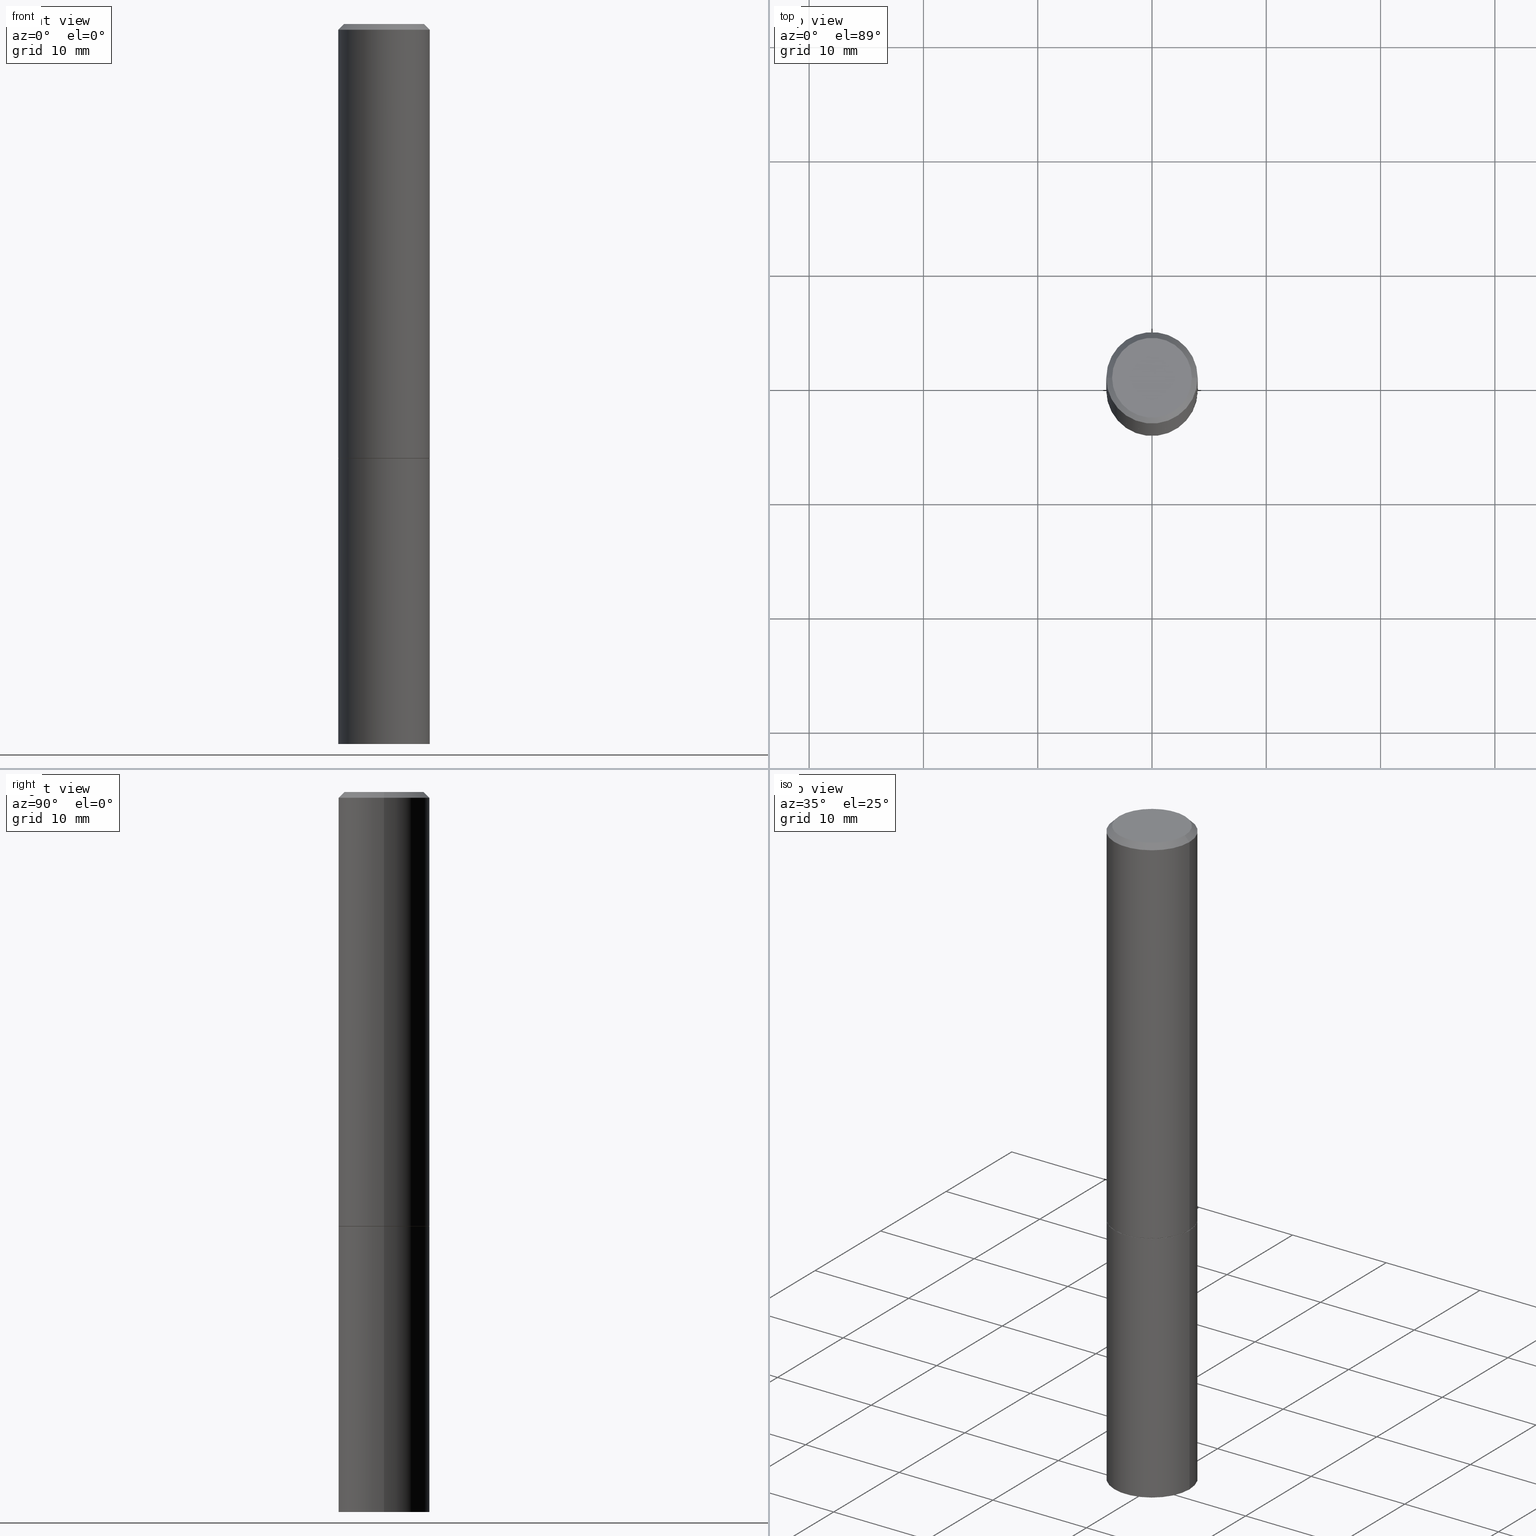
[diagram: canonical four-view strip — front | top / right | iso, engineering-drawing reading convention]
A machine part, canonical four-view strip (front | top / right | iso — engineering-drawing reading convention). The complete STEP part file that produces these views, byte-faithful:
ISO-10303-21;
HEADER;
FILE_DESCRIPTION (( 'STEP AP203' ),
    '1' );
FILE_NAME ('83058.STEP',
    '2024-02-29T22:35:19',
    ( '' ),
    ( '' ),
    'SwSTEP 2.0',
    'SolidWorks 2023',
    '' );
FILE_SCHEMA (( 'CONFIG_CONTROL_DESIGN' ));
ENDSEC;

DATA;
#1 = AXIS2_PLACEMENT_3D ( 'NONE', #163, #281, #157 ) ;
#2 = CARTESIAN_POINT ( 'NONE',  ( 6.065496279980994755E-29, -8.659921164732655335E-15, -2.480300000000000171 ) ) ;
#3 = EDGE_CURVE ( 'NONE', #110, #333, #67, .T. ) ;
#4 = CARTESIAN_POINT ( 'NONE',  ( 0.1565000000000000002, -6.316089741967248403E-15, -1.496000000000000663 ) ) ;
#5 = AXIS2_PLACEMENT_3D ( 'NONE', #21, #237, #353 ) ;
#6 = APPROVAL_PERSON_ORGANIZATION ( #346, #112, #55 ) ;
#7 = COORDINATED_UNIVERSAL_TIME_OFFSET ( 5, 0, .BEHIND. ) ;
#8 = DATE_AND_TIME ( #124, #297 ) ;
#9 = CARTESIAN_POINT ( 'NONE',  ( 0.1374999999999997891, -1.046838268059730914E-15, 8.537024980207840646E-18 ) ) ;
#10 = ORIENTED_EDGE ( 'NONE', *, *, #75, .F. ) ;
#11 = DIRECTION ( 'NONE',  ( -1.000000000000000000, 6.982962677686265922E-15, -4.876176775795935793E-29 ) ) ;
#12 = PERSON ( 'UNSPECIFIED', 'UNSPECIFIED', 'UNSPECIFIED', ('UNSPECIFIED'), ('UNSPECIFIED'), ('UNSPECIFIED') ) ;
#13 = PLANE ( 'NONE',  #25 ) ;
#14 = ORIENTED_EDGE ( 'NONE', *, *, #17, .T. ) ;
#15 = AXIS2_PLACEMENT_3D ( 'NONE', #206, #301, #121 ) ;
#16 = LOCAL_TIME ( 17, 35, 19.00000000000000000, #111 ) ;
#17 = EDGE_CURVE ( 'NONE', #248, #358, #155, .T. ) ;
#18 = CARTESIAN_POINT ( 'NONE',  ( 4.890937612370281041E-31, -6.982962677686302702E-17, -0.02000000000000003511 ) ) ;
#19 = ADVANCED_FACE ( 'NONE', ( #193 ), #164, .T. ) ;
#20 = APPROVAL_STATUS ( 'not_yet_approved' ) ;
#21 = CARTESIAN_POINT ( 'NONE',  ( 3.655975865246779683E-29, -5.219764601570503930E-15, -1.495000000000000329 ) ) ;
#22 = SECURITY_CLASSIFICATION_LEVEL ( 'unclassified' ) ;
#23 = DIRECTION ( 'NONE',  ( -2.445468806185136597E-29, 3.491481338843145583E-15, 1.000000000000000000 ) ) ;
#24 = EDGE_LOOP ( 'NONE', ( #312, #113, #83, #331 ) ) ;
#25 = AXIS2_PLACEMENT_3D ( 'NONE', #225, #199, #46 ) ;
#26 = ORIENTED_EDGE ( 'NONE', *, *, #283, .T. ) ;
#27 = CALENDAR_DATE ( 2024, 29, 2 ) ;
#28 = CC_DESIGN_PERSON_AND_ORGANIZATION_ASSIGNMENT ( #49, #153, ( #221 ) ) ;
#29 = LINE ( 'NONE', #136, #93 ) ;
#30 = VERTEX_POINT ( 'NONE', #195 ) ;
#31 = ORIENTED_EDGE ( 'NONE', *, *, #222, .F. ) ;
#32 = AXIS2_PLACEMENT_3D ( 'NONE', #143, #227, #339 ) ;
#33 = EDGE_CURVE ( 'NONE', #357, #333, #311, .T. ) ;
#34 = EDGE_LOOP ( 'NONE', ( #138, #217, #275, #120 ) ) ;
#35 = ORIENTED_EDGE ( 'NONE', *, *, #332, .F. ) ;
#36 = DIRECTION ( 'NONE',  ( 1.000000000000000000, -6.982962677686261977E-15, 0.000000000000000000 ) ) ;
#37 = CIRCLE ( 'NONE', #260, 0.1574999999999997791 ) ;
#38 = LINE ( 'NONE', #4, #329 ) ;
#39 = DIRECTION ( 'NONE',  ( 0.000000000000000000, 0.000000000000000000, 1.000000000000000000 ) ) ;
#40 = CALENDAR_DATE ( 2024, 29, 2 ) ;
#41 = PERSON_AND_ORGANIZATION ( #12, #356 ) ;
#42 = CARTESIAN_POINT ( 'NONE',  ( 0.000000000000000000, 0.000000000000000000, 0.000000000000000000 ) ) ;
#43 = DIRECTION ( 'NONE',  ( 2.445468806185136597E-29, -3.491481338843145583E-15, -1.000000000000000000 ) ) ;
#44 = ORIENTED_EDGE ( 'NONE', *, *, #319, .T. ) ;
#45 = CARTESIAN_POINT ( 'NONE',  ( -0.1575000000000000011, -1.525692305351524236E-15, -1.495000000000000329 ) ) ;
#46 = DIRECTION ( 'NONE',  ( -1.000000000000000000, 6.982962677686265922E-15, -4.876176775795935793E-29 ) ) ;
#47 = ORIENTED_EDGE ( 'NONE', *, *, #89, .T. ) ;
#48 = EDGE_CURVE ( 'NONE', #245, #189, #307, .T. ) ;
#49 = PERSON_AND_ORGANIZATION ( #12, #356 ) ;
#50 = DIRECTION ( 'NONE',  ( -1.000000000000000000, 6.982962677686266711E-15, 0.000000000000000000 ) ) ;
#51 = CIRCLE ( 'NONE', #249, 0.1575000000000000011 ) ;
#52 = AXIS2_PLACEMENT_3D ( 'NONE', #291, #103, #123 ) ;
#53 = CC_DESIGN_PERSON_AND_ORGANIZATION_ASSIGNMENT ( #178, #294, ( #104 ) ) ;
#54 = APPLICATION_CONTEXT ( 'configuration controlled 3d designs of mechanical parts and assemblies' ) ;
#55 = APPROVAL_ROLE ( '' ) ;
#56 = DIMENSIONAL_EXPONENTS ( 1.000000000000000000, 0.000000000000000000, 0.000000000000000000, 0.000000000000000000, 0.000000000000000000, 0.000000000000000000, 0.000000000000000000 ) ;
#57 = ORIENTED_EDGE ( 'NONE', *, *, #3, .T. ) ;
#58 = CIRCLE ( 'NONE', #5, 0.1575000000000000011 ) ;
#59 = FACE_OUTER_BOUND ( 'NONE', #250, .T. ) ;
#60 = ORIENTED_EDGE ( 'NONE', *, *, #156, .F. ) ;
#61 = CARTESIAN_POINT ( 'NONE',  ( 0.1575000000000000011, -1.099816621735586889E-15, 7.679978421878598033E-30 ) ) ;
#62 = DIRECTION ( 'NONE',  ( -2.445468806185136597E-29, 3.491481338843145583E-15, 1.000000000000000000 ) ) ;
#63 = CIRCLE ( 'NONE', #313, 0.1574999999999997791 ) ;
#64 = DIRECTION ( 'NONE',  ( -2.445468806185136597E-29, 3.491481338843145583E-15, 1.000000000000000000 ) ) ;
#65 = DIRECTION ( 'NONE',  ( 1.000000000000000000, -6.982962677686267499E-15, 0.000000000000000000 ) ) ;
#66 = DIRECTION ( 'NONE',  ( -0.7071067811865466846, 2.468850131082247989E-15, -0.7071067811865483499 ) ) ;
#67 = CIRCLE ( 'NONE', #334, 0.1575000000000000011 ) ;
#68 = CC_DESIGN_APPROVAL ( #81, ( #221 ) ) ;
#69 = PERSON_AND_ORGANIZATION_ROLE ( 'design_owner' ) ;
#70 = APPROVAL_DATE_TIME ( #324, #172 ) ;
#71 = EDGE_CURVE ( 'NONE', #364, #110, #170, .T. ) ;
#72 = CARTESIAN_POINT ( 'NONE',  ( 0.1575000000000000011, -9.759737786468242027E-15, -2.480300000000000171 ) ) ;
#73 = CARTESIAN_POINT ( 'NONE',  ( 3.658421334052965846E-29, -5.223256082909347726E-15, -1.496000000000000663 ) ) ;
#74 = DIRECTION ( 'NONE',  ( 1.000000000000000000, -6.982962677686266711E-15, 0.000000000000000000 ) ) ;
#75 = EDGE_CURVE ( 'NONE', #30, #167, #98, .T. ) ;
#76 = DIRECTION ( 'NONE',  ( -2.445468806185136877E-29, 3.491481338843145188E-15, 1.000000000000000000 ) ) ;
#77 = DIRECTION ( 'NONE',  ( 2.438088387897960049E-29, -3.491481338843145188E-15, -1.000000000000000000 ) ) ;
#78 = EDGE_LOOP ( 'NONE', ( #242, #57 ) ) ;
#79 = SHAPE_DEFINITION_REPRESENTATION ( #258, #145 ) ;
#80 = VECTOR ( 'NONE', #190, 39.37007874015748143 ) ;
#81 = APPROVAL ( #238, 'UNSPECIFIED' ) ;
#82 = DIRECTION ( 'NONE',  ( 1.000000000000000000, -6.982962677686267499E-15, 4.876173381029107889E-29 ) ) ;
#83 = ORIENTED_EDGE ( 'NONE', *, *, #33, .T. ) ;
#84 = CARTESIAN_POINT ( 'NONE',  ( 0.1574999999999997791, -1.150358061425877894E-15, -0.02000000000000003511 ) ) ;
#85 = EDGE_LOOP ( 'NONE', ( #219, #236, #268, #366 ) ) ;
#86 = CONICAL_SURFACE ( 'NONE', #15, 0.1574999999999997791, 0.7853981633974471688 ) ;
#87 = CC_DESIGN_APPROVAL ( #172, ( #104 ) ) ;
#88 = ORIENTED_EDGE ( 'NONE', *, *, #156, .T. ) ;
#89 = EDGE_CURVE ( 'NONE', #336, #150, #37, .T. ) ;
#90 = CARTESIAN_POINT ( 'NONE',  ( 3.655975865246779683E-29, -5.219764601570503930E-15, -1.495000000000000329 ) ) ;
#91 = CC_DESIGN_DATE_AND_TIME_ASSIGNMENT ( #8, #232, ( #104 ) ) ;
#92 = CARTESIAN_POINT ( 'NONE',  ( 3.658421334052965846E-29, -5.223256082909347726E-15, -1.496000000000000663 ) ) ;
#93 = VECTOR ( 'NONE', #359, 39.37007874015748143 ) ;
#94 = DIRECTION ( 'NONE',  ( -2.445468806185136597E-29, 3.491481338843145583E-15, 1.000000000000000000 ) ) ;
#95 = CARTESIAN_POINT ( 'NONE',  ( 3.658421334052965286E-29, -5.223256082909346937E-15, -1.496000000000000441 ) ) ;
#96 = CARTESIAN_POINT ( 'NONE',  ( 3.658421334052965846E-29, -5.223256082909347726E-15, -1.496000000000000663 ) ) ;
#97 = MANIFOLD_SOLID_BREP ( 'Body-Move/Copy2[2]', #325 ) ;
#98 = CIRCLE ( 'NONE', #175, 0.1374999999999997891 ) ;
#99 = CC_DESIGN_APPROVAL ( #112, ( #271 ) ) ;
#100 = ADVANCED_FACE ( 'NONE', ( #327 ), #303, .T. ) ;
#101 = COORDINATED_UNIVERSAL_TIME_OFFSET ( 5, 0, .BEHIND. ) ;
#102 = PRODUCT ( '83058', '83058', '', ( #257 ) ) ;
#103 = DIRECTION ( 'NONE',  ( -2.445468806185136597E-29, 3.491481338843145583E-15, 1.000000000000000000 ) ) ;
#104 = PRODUCT_DEFINITION ( 'UNKNOWN', '', #271, #169 ) ;
#105 = CARTESIAN_POINT ( 'NONE',  ( -0.1575000000000000011, -5.822483814998842744E-15, -2.480300000000000171 ) ) ;
#106 = DIRECTION ( 'NONE',  ( -2.445468806185136597E-29, 3.491481338843145583E-15, 1.000000000000000000 ) ) ;
#107 = EDGE_CURVE ( 'NONE', #189, #358, #146, .T. ) ;
#108 = AXIS2_PLACEMENT_3D ( 'NONE', #90, #64, #224 ) ;
#109 = CYLINDRICAL_SURFACE ( 'NONE', #117, 0.1575000000000000011 ) ;
#110 = VERTEX_POINT ( 'NONE', #255 ) ;
#111 = COORDINATED_UNIVERSAL_TIME_OFFSET ( 5, 0, .BEHIND. ) ;
#112 = APPROVAL ( #20, 'UNSPECIFIED' ) ;
#113 = ORIENTED_EDGE ( 'NONE', *, *, #222, .T. ) ;
#114 = CARTESIAN_POINT ( 'NONE',  ( 3.658421334052965846E-29, -5.223256082909347726E-15, -1.496000000000000663 ) ) ;
#115 = ADVANCED_FACE ( 'NONE', ( #300 ), #296, .T. ) ;
#116 = ORIENTED_EDGE ( 'NONE', *, *, #321, .F. ) ;
#117 = AXIS2_PLACEMENT_3D ( 'NONE', #210, #106, #186 ) ;
#118 = ORIENTED_EDGE ( 'NONE', *, *, #202, .F. ) ;
#119 = DIRECTION ( 'NONE',  ( 1.000000000000000000, -6.982962677686268288E-15, 0.000000000000000000 ) ) ;
#120 = ORIENTED_EDGE ( 'NONE', *, *, #33, .F. ) ;
#121 = DIRECTION ( 'NONE',  ( -1.000000000000000000, 6.982962677686266711E-15, 0.000000000000000000 ) ) ;
#122 = CARTESIAN_POINT ( 'NONE',  ( 4.890937612370281041E-31, -6.982962677686302702E-17, -0.02000000000000003511 ) ) ;
#123 = DIRECTION ( 'NONE',  ( 1.000000000000000000, -6.982962677686261977E-15, 0.000000000000000000 ) ) ;
#124 = CALENDAR_DATE ( 2024, 29, 2 ) ;
#125 = CARTESIAN_POINT ( 'NONE',  ( 9.601573681818600950E-16, 0.1374999999999997891, -4.758101716008313957E-16 ) ) ;
#126 = CARTESIAN_POINT ( 'NONE',  ( 1.099816621735623373E-15, 0.1574999999999947553, -1.496000000000000885 ) ) ;
#127 = ORIENTED_EDGE ( 'NONE', *, *, #319, .F. ) ;
#128 =( NAMED_UNIT ( * ) SI_UNIT ( $, .STERADIAN. ) SOLID_ANGLE_UNIT ( ) );
#129 = DIRECTION ( 'NONE',  ( -2.445468806185136597E-29, 3.491481338843145583E-15, 1.000000000000000000 ) ) ;
#130 = ORIENTED_EDGE ( 'NONE', *, *, #321, .T. ) ;
#131 = PERSON_AND_ORGANIZATION_ROLE ( 'design_supplier' ) ;
#132 = DATE_AND_TIME ( #330, #16 ) ;
#133 = EDGE_LOOP ( 'NONE', ( #305, #31 ) ) ;
#134 = CONICAL_SURFACE ( 'NONE', #229, 0.1565000000000000002, 0.7853981633972775267 ) ;
#135 = ORIENTED_EDGE ( 'NONE', *, *, #283, .F. ) ;
#136 = CARTESIAN_POINT ( 'NONE',  ( -0.1574999999999998901, 1.119104808822157012E-15, -7.747322767151471379E-30 ) ) ;
#137 = ADVANCED_FACE ( 'NONE', ( #269 ), #13, .T. ) ;
#138 = ORIENTED_EDGE ( 'NONE', *, *, #340, .T. ) ;
#139 = CC_DESIGN_PERSON_AND_ORGANIZATION_ASSIGNMENT ( #204, #69, ( #102 ) ) ;
#140 = ORIENTED_EDGE ( 'NONE', *, *, #75, .T. ) ;
#141 = ORIENTED_EDGE ( 'NONE', *, *, #276, .F. ) ;
#142 = DIRECTION ( 'NONE',  ( -2.445468806185136877E-29, 3.491481338843145188E-15, 1.000000000000000000 ) ) ;
#143 = CARTESIAN_POINT ( 'NONE',  ( 0.000000000000000000, 0.000000000000000000, 0.000000000000000000 ) ) ;
#144 = CLOSED_SHELL ( 'NONE', ( #174, #137, #147, #231 ) ) ;
#145 = ADVANCED_BREP_SHAPE_REPRESENTATION ( '83058', ( #200, #97, #308 ), #226 ) ;
#146 = LINE ( 'NONE', #183, #220 ) ;
#147 = ADVANCED_FACE ( 'NONE', ( #338 ), #152, .F. ) ;
#148 = APPLICATION_PROTOCOL_DEFINITION ( 'international standard', 'config_control_design', 1994, #54 ) ;
#149 = CARTESIAN_POINT ( 'NONE',  ( 4.890937612370281041E-31, -6.982962677686302702E-17, -0.02000000000000003511 ) ) ;
#150 = VERTEX_POINT ( 'NONE', #235 ) ;
#151 = CC_DESIGN_PERSON_AND_ORGANIZATION_ASSIGNMENT ( #218, #354, ( #271 ) ) ;
#152 = PLANE ( 'NONE',  #348 ) ;
#153 = PERSON_AND_ORGANIZATION_ROLE ( 'classification_officer' ) ;
#154 = DIRECTION ( 'NONE',  ( -0.7071067811864267805, 7.493145998869918709E-15, 0.7071067811866682540 ) ) ;
#155 = CIRCLE ( 'NONE', #108, 0.1575000000000000011 ) ;
#156 = EDGE_CURVE ( 'NONE', #150, #336, #63, .T. ) ;
#157 = DIRECTION ( 'NONE',  ( 1.000000000000000000, -6.982962677686265922E-15, 4.876176775795935793E-29 ) ) ;
#158 = CALENDAR_DATE ( 2024, 29, 2 ) ;
#159 = PERSON_AND_ORGANIZATION ( #12, #356 ) ;
#160 = ORIENTED_EDGE ( 'NONE', *, *, #310, .T. ) ;
#161 = CIRCLE ( 'NONE', #188, 0.1374999999999997891 ) ;
#162 = DATE_TIME_ROLE ( 'classification_date' ) ;
#163 = CARTESIAN_POINT ( 'NONE',  ( 3.658421334052965846E-29, -5.223256082909347726E-15, -1.496000000000000663 ) ) ;
#164 = CYLINDRICAL_SURFACE ( 'NONE', #361, 0.1574999999999998901 ) ;
#165 = DIRECTION ( 'NONE',  ( -2.445468806185136597E-29, 3.491481338843145583E-15, 1.000000000000000000 ) ) ;
#166 = EDGE_LOOP ( 'NONE', ( #360, #44, #191, #116 ) ) ;
#167 = VERTEX_POINT ( 'NONE', #9 ) ;
#168 = AXIS2_PLACEMENT_3D ( 'NONE', #114, #165, #272 ) ;
#169 = DESIGN_CONTEXT ( 'detailed design', #54, 'design' ) ;
#170 = LINE ( 'NONE', #288, #194 ) ;
#171 = CARTESIAN_POINT ( 'NONE',  ( -0.1565000000000000002, -4.105958247096567940E-15, -1.496000000000000663 ) ) ;
#172 = APPROVAL ( #177, 'UNSPECIFIED' ) ;
#173 = DIRECTION ( 'NONE',  ( 1.000000000000000000, -6.982962677686267499E-15, 4.876173381029107889E-29 ) ) ;
#174 = ADVANCED_FACE ( 'NONE', ( #316 ), #109, .T. ) ;
#175 = AXIS2_PLACEMENT_3D ( 'NONE', #252, #234, #173 ) ;
#176 = APPROVAL_PERSON_ORGANIZATION ( #41, #172, #259 ) ;
#177 = APPROVAL_STATUS ( 'not_yet_approved' ) ;
#178 = PERSON_AND_ORGANIZATION ( #12, #356 ) ;
#179 = PLANE ( 'NONE',  #241 ) ;
#180 = DIRECTION ( 'NONE',  ( -2.445468806185136597E-29, 3.491481338843145583E-15, 1.000000000000000000 ) ) ;
#181 = CC_DESIGN_PERSON_AND_ORGANIZATION_ASSIGNMENT ( #352, #131, ( #271 ) ) ;
#182 = APPLICATION_PROTOCOL_DEFINITION ( 'international standard', 'config_control_design', 1994, #209 ) ;
#183 = CARTESIAN_POINT ( 'NONE',  ( -0.1565000000000000002, -4.111256701444791131E-15, -1.496000000000000663 ) ) ;
#184 = CC_DESIGN_DATE_AND_TIME_ASSIGNMENT ( #132, #162, ( #221 ) ) ;
#185 = ORIENTED_EDGE ( 'NONE', *, *, #48, .F. ) ;
#186 = DIRECTION ( 'NONE',  ( 1.000000000000000000, -6.982962677686265922E-15, 4.876176775795935232E-29 ) ) ;
#187 = COORDINATED_UNIVERSAL_TIME_OFFSET ( 5, 0, .BEHIND. ) ;
#188 = AXIS2_PLACEMENT_3D ( 'NONE', #216, #23, #82 ) ;
#189 = VERTEX_POINT ( 'NONE', #171 ) ;
#190 = DIRECTION ( 'NONE',  ( 0.7071067811865466846, -7.319954787623252890E-15, -0.7071067811865483499 ) ) ;
#191 = ORIENTED_EDGE ( 'NONE', *, *, #211, .T. ) ;
#192 = CYLINDRICAL_SURFACE ( 'NONE', #207, 0.1574999999999998901 ) ;
#193 = FACE_OUTER_BOUND ( 'NONE', #351, .T. ) ;
#194 = VECTOR ( 'NONE', #142, 39.37007874015748143 ) ;
#195 = CARTESIAN_POINT ( 'NONE',  ( -0.1374999999999997891, 9.950721815702913496E-16, 8.537024980193986277E-18 ) ) ;
#196 = CARTESIAN_POINT ( 'NONE',  ( 0.000000000000000000, 0.000000000000000000, 0.000000000000000000 ) ) ;
#197 = DIRECTION ( 'NONE',  ( -2.445468806185136877E-29, 3.491481338843145188E-15, 1.000000000000000000 ) ) ;
#198 = VECTOR ( 'NONE', #76, 39.37007874015748143 ) ;
#199 = DIRECTION ( 'NONE',  ( 2.438088387897960049E-29, -3.491481338843145188E-15, -1.000000000000000000 ) ) ;
#200 = MANIFOLD_SOLID_BREP ( 'Body-Move/Copy2[1]', #144 ) ;
#201 = DIRECTION ( 'NONE',  ( 1.000000000000000000, -6.982962677686268288E-15, 0.000000000000000000 ) ) ;
#202 = EDGE_CURVE ( 'NONE', #30, #336, #253, .T. ) ;
#203 = DIRECTION ( 'NONE',  ( -2.445468806185136597E-29, 3.491481338843145583E-15, 1.000000000000000000 ) ) ;
#204 = PERSON_AND_ORGANIZATION ( #12, #356 ) ;
#205 = ADVANCED_FACE ( 'NONE', ( #263 ), #86, .T. ) ;
#206 = CARTESIAN_POINT ( 'NONE',  ( 4.890937612370281041E-31, -6.982962677686302702E-17, -0.02000000000000003511 ) ) ;
#207 = AXIS2_PLACEMENT_3D ( 'NONE', #306, #244, #212 ) ;
#208 = EDGE_LOOP ( 'NONE', ( #141, #26, #88, #118 ) ) ;
#209 = APPLICATION_CONTEXT ( 'configuration controlled 3d designs of mechanical parts and assemblies' ) ;
#210 = CARTESIAN_POINT ( 'NONE',  ( 0.000000000000000000, 0.000000000000000000, 0.000000000000000000 ) ) ;
#211 = EDGE_CURVE ( 'NONE', #245, #248, #38, .T. ) ;
#212 = DIRECTION ( 'NONE',  ( 1.000000000000000000, -6.982962677686266711E-15, 4.876176775795935793E-29 ) ) ;
#213 = DATE_AND_TIME ( #158, #322 ) ;
#214 = AXIS2_PLACEMENT_3D ( 'NONE', #96, #94, #65 ) ;
#215 = APPROVAL_DATE_TIME ( #277, #81 ) ;
#216 = CARTESIAN_POINT ( 'NONE',  ( -2.087702828670439639E-46, 2.980686340760894400E-32, 8.537024980200822558E-18 ) ) ;
#217 = ORIENTED_EDGE ( 'NONE', *, *, #71, .T. ) ;
#218 = PERSON_AND_ORGANIZATION ( #12, #356 ) ;
#219 = ORIENTED_EDGE ( 'NONE', *, *, #48, .T. ) ;
#220 = VECTOR ( 'NONE', #154, 39.37007874015748143 ) ;
#221 = SECURITY_CLASSIFICATION ( '', '', #22 ) ;
#222 = EDGE_CURVE ( 'NONE', #364, #357, #51, .T. ) ;
#223 = ORIENTED_EDGE ( 'NONE', *, *, #202, .T. ) ;
#224 = DIRECTION ( 'NONE',  ( 1.000000000000000000, -6.982962677686268288E-15, 0.000000000000000000 ) ) ;
#225 = CARTESIAN_POINT ( 'NONE',  ( 1.099816621735647434E-15, 0.1574999999999913136, -2.480300000000001059 ) ) ;
#226 =( GEOMETRIC_REPRESENTATION_CONTEXT ( 3 ) GLOBAL_UNCERTAINTY_ASSIGNED_CONTEXT ( ( #254 ) ) GLOBAL_UNIT_ASSIGNED_CONTEXT ( ( #323, #342, #128 ) ) REPRESENTATION_CONTEXT ( 'NONE', 'WORKASPACE' ) );
#227 = DIRECTION ( 'NONE',  ( -2.445468806185136597E-29, 3.491481338843145583E-15, 1.000000000000000000 ) ) ;
#228 = DIRECTION ( 'NONE',  ( -2.445468806185136597E-29, 3.491481338843145583E-15, 1.000000000000000000 ) ) ;
#229 = AXIS2_PLACEMENT_3D ( 'NONE', #73, #180, #274 ) ;
#230 = LOCAL_TIME ( 17, 35, 19.00000000000000000, #101 ) ;
#231 = ADVANCED_FACE ( 'NONE', ( #326 ), #341, .T. ) ;
#232 = DATE_TIME_ROLE ( 'creation_date' ) ;
#233 =( LENGTH_UNIT ( ) NAMED_UNIT ( * ) SI_UNIT ( $, .METRE. ) );
#234 = DIRECTION ( 'NONE',  ( -2.445468806185136597E-29, 3.491481338843145583E-15, 1.000000000000000000 ) ) ;
#235 = CARTESIAN_POINT ( 'NONE',  ( 0.1574999999999997791, -1.150358061425877894E-15, -0.02000000000000003511 ) ) ;
#236 = ORIENTED_EDGE ( 'NONE', *, *, #107, .T. ) ;
#237 = DIRECTION ( 'NONE',  ( -2.445468806185136597E-29, 3.491481338843145583E-15, 1.000000000000000000 ) ) ;
#238 = APPROVAL_STATUS ( 'not_yet_approved' ) ;
#239 = LINE ( 'NONE', #84, #80 ) ;
#240 = CIRCLE ( 'NONE', #52, 0.1575000000000000011 ) ;
#241 = AXIS2_PLACEMENT_3D ( 'NONE', #125, #345, #11 ) ;
#242 = ORIENTED_EDGE ( 'NONE', *, *, #247, .T. ) ;
#243 = APPROVAL_ROLE ( '' ) ;
#244 = DIRECTION ( 'NONE',  ( -2.445468806185136597E-29, 3.491481338843145583E-15, 1.000000000000000000 ) ) ;
#245 = VERTEX_POINT ( 'NONE', #298 ) ;
#246 = ORIENTED_EDGE ( 'NONE', *, *, #332, .T. ) ;
#247 = EDGE_CURVE ( 'NONE', #333, #110, #355, .T. ) ;
#248 = VERTEX_POINT ( 'NONE', #317 ) ;
#249 = AXIS2_PLACEMENT_3D ( 'NONE', #2, #228, #36 ) ;
#250 = EDGE_LOOP ( 'NONE', ( #185, #127 ) ) ;
#251 = LINE ( 'NONE', #365, #198 ) ;
#252 = CARTESIAN_POINT ( 'NONE',  ( -2.087702828670439639E-46, 2.980686340760894400E-32, 8.537024980200822558E-18 ) ) ;
#253 = LINE ( 'NONE', #290, #278 ) ;
#254 = UNCERTAINTY_MEASURE_WITH_UNIT (LENGTH_MEASURE( 1.000000000000000082E-05 ), #323, 'distance_accuracy_value', 'NONE');
#255 = CARTESIAN_POINT ( 'NONE',  ( -0.1575000000000000011, -5.822483814998842744E-15, -1.496000000000000441 ) ) ;
#256 = DIRECTION ( 'NONE',  ( 1.000000000000000000, 0.000000000000000000, 0.000000000000000000 ) ) ;
#257 = MECHANICAL_CONTEXT ( 'NONE', #209, 'mechanical' ) ;
#258 = PRODUCT_DEFINITION_SHAPE ( 'NONE', 'NONE',  #104 ) ;
#259 = APPROVAL_ROLE ( '' ) ;
#260 = AXIS2_PLACEMENT_3D ( 'NONE', #149, #129, #74 ) ;
#261 = CC_DESIGN_SECURITY_CLASSIFICATION ( #221, ( #271 ) ) ;
#262 = FACE_OUTER_BOUND ( 'NONE', #286, .T. ) ;
#263 = FACE_OUTER_BOUND ( 'NONE', #208, .T. ) ;
#264 = ORIENTED_EDGE ( 'NONE', *, *, #89, .F. ) ;
#265 = LENGTH_MEASURE_WITH_UNIT ( LENGTH_MEASURE( 0.02539999999999999897 ), #233 );
#266 = ADVANCED_FACE ( 'NONE', ( #318 ), #134, .T. ) ;
#267 = DIRECTION ( 'NONE',  ( -1.000000000000000000, 6.982962677686265922E-15, -4.876176775795935793E-29 ) ) ;
#268 = ORIENTED_EDGE ( 'NONE', *, *, #17, .F. ) ;
#269 = FACE_OUTER_BOUND ( 'NONE', #133, .T. ) ;
#270 = AXIS2_PLACEMENT_3D ( 'NONE', #122, #43, #50 ) ;
#271 = PRODUCT_DEFINITION_FORMATION_WITH_SPECIFIED_SOURCE ( 'ANY', '', #102, .NOT_KNOWN. ) ;
#272 = DIRECTION ( 'NONE',  ( 1.000000000000000000, -6.982962677686267499E-15, 0.000000000000000000 ) ) ;
#273 = APPROVAL_DATE_TIME ( #213, #112 ) ;
#274 = DIRECTION ( 'NONE',  ( 1.000000000000000000, -6.982962677686267499E-15, 0.000000000000000000 ) ) ;
#275 = ORIENTED_EDGE ( 'NONE', *, *, #247, .F. ) ;
#276 = EDGE_CURVE ( 'NONE', #167, #30, #161, .T. ) ;
#277 = DATE_AND_TIME ( #27, #315 ) ;
#278 = VECTOR ( 'NONE', #66, 39.37007874015748143 ) ;
#279 = EDGE_LOOP ( 'NONE', ( #299, #130, #246, #264 ) ) ;
#280 = COORDINATED_UNIVERSAL_TIME_OFFSET ( 5, 0, .BEHIND. ) ;
#281 = DIRECTION ( 'NONE',  ( -2.438088387897960049E-29, 3.491481338843145188E-15, 1.000000000000000000 ) ) ;
#282 = ORIENTED_EDGE ( 'NONE', *, *, #276, .T. ) ;
#283 = EDGE_CURVE ( 'NONE', #167, #150, #239, .T. ) ;
#284 = ADVANCED_FACE ( 'NONE', ( #304 ), #192, .T. ) ;
#285 = DIRECTION ( 'NONE',  ( -2.445468806185136597E-29, 3.491481338843145583E-15, 1.000000000000000000 ) ) ;
#286 = EDGE_LOOP ( 'NONE', ( #140, #282 ) ) ;
#287 = VECTOR ( 'NONE', #197, 39.37007874015748143 ) ;
#288 = CARTESIAN_POINT ( 'NONE',  ( -0.1575000000000000011, 1.119104808822157801E-15, -7.747322767151475583E-30 ) ) ;
#289 = DIRECTION ( 'NONE',  ( 0.7071067811864267805, -2.468850131080992517E-15, 0.7071067811866682540 ) ) ;
#290 = CARTESIAN_POINT ( 'NONE',  ( -0.1574999999999997791, 1.029986994958722407E-15, -0.02000000000000003511 ) ) ;
#291 = CARTESIAN_POINT ( 'NONE',  ( 6.065496279980994755E-29, -8.659921164732655335E-15, -2.480300000000000171 ) ) ;
#292 = CARTESIAN_POINT ( 'NONE',  ( 0.1575000000000000011, -6.323072704644934417E-15, -1.496000000000000441 ) ) ;
#293 = ADVANCED_FACE ( 'NONE', ( #59 ), #302, .F. ) ;
#294 = PERSON_AND_ORGANIZATION_ROLE ( 'creator' ) ;
#295 = CARTESIAN_POINT ( 'NONE',  ( -0.1574999999999997791, 1.029986994958722407E-15, -0.02000000000000003511 ) ) ;
#296 = CONICAL_SURFACE ( 'NONE', #214, 0.1565000000000000002, 0.7853981633972775267 ) ;
#297 = LOCAL_TIME ( 17, 35, 19.00000000000000000, #7 ) ;
#298 = CARTESIAN_POINT ( 'NONE',  ( 0.1565000000000000002, -6.316089741967248403E-15, -1.496000000000000663 ) ) ;
#299 = ORIENTED_EDGE ( 'NONE', *, *, #310, .F. ) ;
#300 = FACE_OUTER_BOUND ( 'NONE', #166, .T. ) ;
#301 = DIRECTION ( 'NONE',  ( 2.445468806185136597E-29, -3.491481338843145583E-15, -1.000000000000000000 ) ) ;
#302 = PLANE ( 'NONE',  #1 ) ;
#303 = CONICAL_SURFACE ( 'NONE', #270, 0.1574999999999997791, 0.7853981633974471688 ) ;
#304 = FACE_OUTER_BOUND ( 'NONE', #279, .T. ) ;
#305 = ORIENTED_EDGE ( 'NONE', *, *, #340, .F. ) ;
#306 = CARTESIAN_POINT ( 'NONE',  ( 0.000000000000000000, 0.000000000000000000, 0.000000000000000000 ) ) ;
#307 = CIRCLE ( 'NONE', #320, 0.1565000000000000002 ) ;
#308 = AXIS2_PLACEMENT_3D ( 'NONE', #42, #39, #256 ) ;
#309 = CARTESIAN_POINT ( 'NONE',  ( 3.658421334052965286E-29, -5.223256082909346937E-15, -1.496000000000000441 ) ) ;
#310 = EDGE_CURVE ( 'NONE', #358, #336, #29, .T. ) ;
#311 = LINE ( 'NONE', #61, #287 ) ;
#312 = ORIENTED_EDGE ( 'NONE', *, *, #71, .F. ) ;
#313 = AXIS2_PLACEMENT_3D ( 'NONE', #18, #349, #347 ) ;
#314 = DIRECTION ( 'NONE',  ( 1.000000000000000000, -6.982962677686267499E-15, 0.000000000000000000 ) ) ;
#315 = LOCAL_TIME ( 17, 35, 19.00000000000000000, #187 ) ;
#316 = FACE_OUTER_BOUND ( 'NONE', #34, .T. ) ;
#317 = CARTESIAN_POINT ( 'NONE',  ( 0.1575000000000000011, -6.319581223306091410E-15, -1.495000000000000329 ) ) ;
#318 = FACE_OUTER_BOUND ( 'NONE', #85, .T. ) ;
#319 = EDGE_CURVE ( 'NONE', #189, #245, #328, .T. ) ;
#320 = AXIS2_PLACEMENT_3D ( 'NONE', #92, #285, #314 ) ;
#321 = EDGE_CURVE ( 'NONE', #358, #248, #58, .T. ) ;
#322 = LOCAL_TIME ( 17, 35, 19.00000000000000000, #280 ) ;
#323 =( CONVERSION_BASED_UNIT ( 'INCH', #265 ) LENGTH_UNIT ( ) NAMED_UNIT ( #56 ) );
#324 = DATE_AND_TIME ( #40, #230 ) ;
#325 = CLOSED_SHELL ( 'NONE', ( #266, #19, #205, #100, #284, #115, #293, #350 ) ) ;
#326 = FACE_OUTER_BOUND ( 'NONE', #24, .T. ) ;
#327 = FACE_OUTER_BOUND ( 'NONE', #363, .T. ) ;
#328 = CIRCLE ( 'NONE', #168, 0.1565000000000000002 ) ;
#329 = VECTOR ( 'NONE', #289, 39.37007874015748143 ) ;
#330 = CALENDAR_DATE ( 2024, 29, 2 ) ;
#331 = ORIENTED_EDGE ( 'NONE', *, *, #3, .F. ) ;
#332 = EDGE_CURVE ( 'NONE', #248, #150, #251, .T. ) ;
#333 = VERTEX_POINT ( 'NONE', #292 ) ;
#334 = AXIS2_PLACEMENT_3D ( 'NONE', #309, #62, #119 ) ;
#335 = DIRECTION ( 'NONE',  ( -2.445468806185136597E-29, 3.491481338843145583E-15, 1.000000000000000000 ) ) ;
#336 = VERTEX_POINT ( 'NONE', #295 ) ;
#337 = DIRECTION ( 'NONE',  ( 1.000000000000000000, -6.982962677686266711E-15, 4.876176775795935793E-29 ) ) ;
#338 = FACE_OUTER_BOUND ( 'NONE', #78, .T. ) ;
#339 = DIRECTION ( 'NONE',  ( 1.000000000000000000, -6.982962677686265922E-15, 4.876176775795935232E-29 ) ) ;
#340 = EDGE_CURVE ( 'NONE', #357, #364, #240, .T. ) ;
#341 = CYLINDRICAL_SURFACE ( 'NONE', #32, 0.1575000000000000011 ) ;
#342 =( NAMED_UNIT ( * ) PLANE_ANGLE_UNIT ( ) SI_UNIT ( $, .RADIAN. ) );
#343 = AXIS2_PLACEMENT_3D ( 'NONE', #95, #203, #201 ) ;
#344 = APPROVAL_PERSON_ORGANIZATION ( #159, #81, #243 ) ;
#345 = DIRECTION ( 'NONE',  ( 2.438088387897960049E-29, -3.491481338843145188E-15, -1.000000000000000000 ) ) ;
#346 = PERSON_AND_ORGANIZATION ( #12, #356 ) ;
#347 = DIRECTION ( 'NONE',  ( 1.000000000000000000, -6.982962677686266711E-15, 0.000000000000000000 ) ) ;
#348 = AXIS2_PLACEMENT_3D ( 'NONE', #126, #77, #267 ) ;
#349 = DIRECTION ( 'NONE',  ( -2.445468806185136597E-29, 3.491481338843145583E-15, 1.000000000000000000 ) ) ;
#350 = ADVANCED_FACE ( 'NONE', ( #262 ), #179, .F. ) ;
#351 = EDGE_LOOP ( 'NONE', ( #14, #160, #60, #35 ) ) ;
#352 = PERSON_AND_ORGANIZATION ( #12, #356 ) ;
#353 = DIRECTION ( 'NONE',  ( 1.000000000000000000, -6.982962677686268288E-15, 0.000000000000000000 ) ) ;
#354 = PERSON_AND_ORGANIZATION_ROLE ( 'creator' ) ;
#355 = CIRCLE ( 'NONE', #343, 0.1575000000000000011 ) ;
#356 = ORGANIZATION ( 'UNSPECIFIED', 'UNSPECIFIED', '' ) ;
#357 = VERTEX_POINT ( 'NONE', #72 ) ;
#358 = VERTEX_POINT ( 'NONE', #45 ) ;
#359 = DIRECTION ( 'NONE',  ( -2.445468806185136877E-29, 3.491481338843145188E-15, 1.000000000000000000 ) ) ;
#360 = ORIENTED_EDGE ( 'NONE', *, *, #107, .F. ) ;
#361 = AXIS2_PLACEMENT_3D ( 'NONE', #196, #335, #337 ) ;
#362 = PRODUCT_RELATED_PRODUCT_CATEGORY ( 'detail', '', ( #102 ) ) ;
#363 = EDGE_LOOP ( 'NONE', ( #135, #10, #223, #47 ) ) ;
#364 = VERTEX_POINT ( 'NONE', #105 ) ;
#365 = CARTESIAN_POINT ( 'NONE',  ( 0.1574999999999998901, -1.099816621735586297E-15, 7.679978421878593829E-30 ) ) ;
#366 = ORIENTED_EDGE ( 'NONE', *, *, #211, .F. ) ;
ENDSEC;
END-ISO-10303-21;
